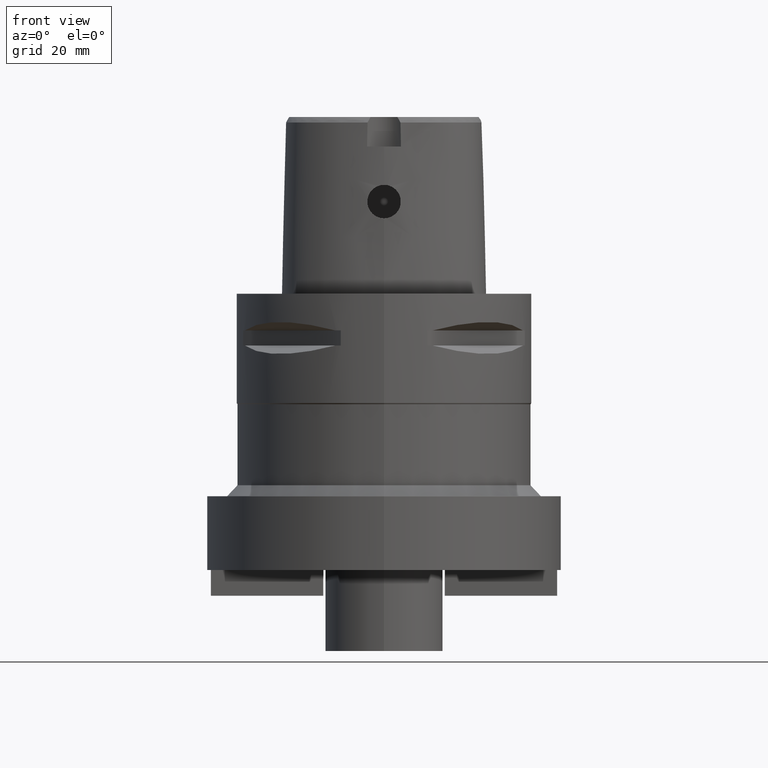
[diagram: clean part render]
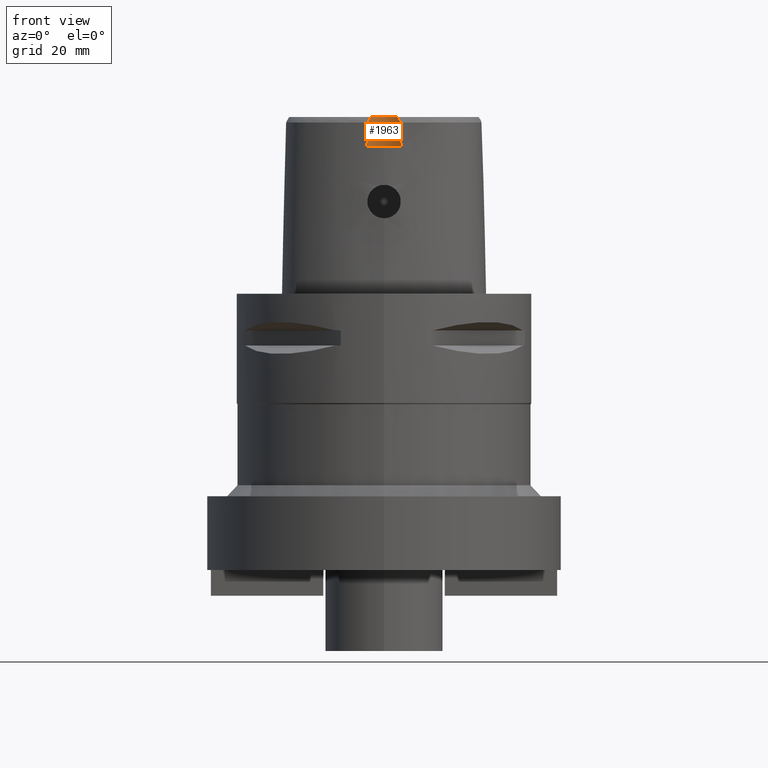
[diagram: same view with one face highlighted and labeled with its STEP entity id]
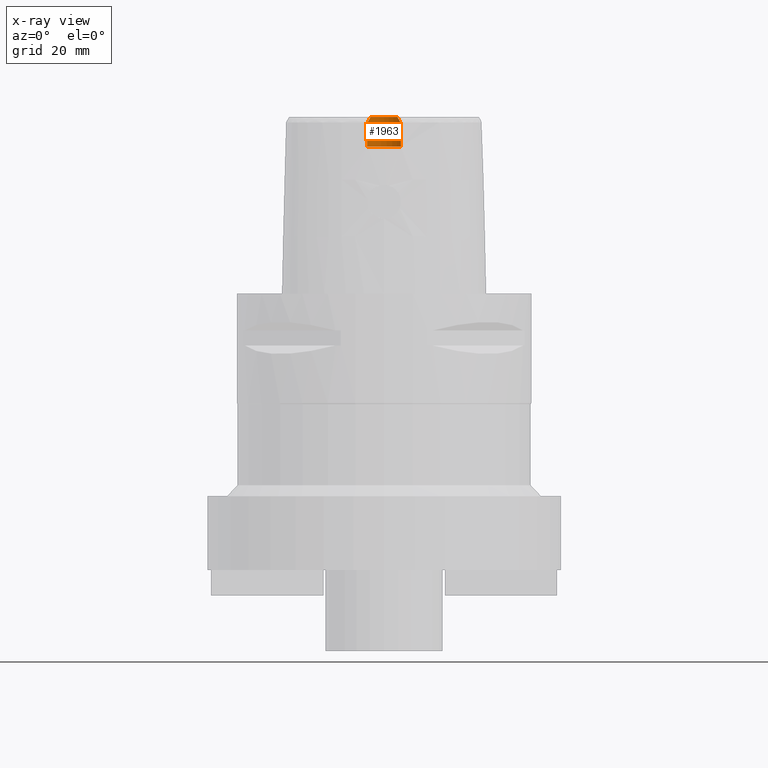
[diagram: x-ray of the same camera — body ghosted, the highlighted face saturated]
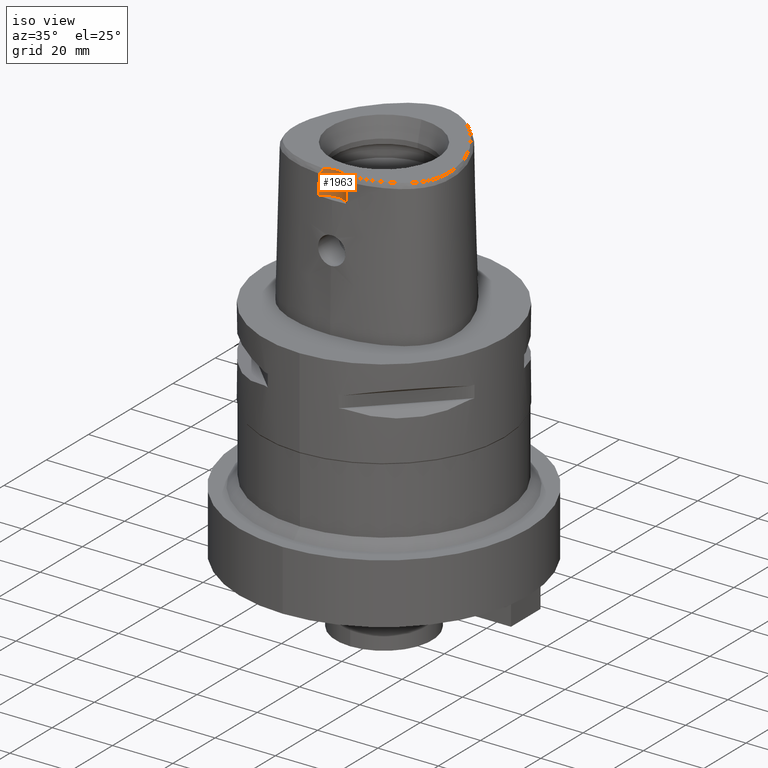
[diagram: same view with one face highlighted and labeled with its STEP entity id]
A machine part, front view. The second image highlights one B-rep face of the part: STEP entity #1963.
The next image is the same camera in x-ray: the body ghosted, the highlighted face saturated — about 0% of this face is hidden behind the body in this view.
A second angle (iso view) of the same face is appended — the face is thin or edge-on in the first view.
In plain terms, the highlighted cylindrical surface (edge-blend (fillet) strip) has radius 6 mm, axis along (0, 0, 1).
Its self-contained STEP definition (entity closure, byte-faithful):
#17=CARTESIAN_POINT('',(0.E0,-2.82E1,4.8E1));
#18=DIRECTION('',(0.E0,0.E0,1.E0));
#19=DIRECTION('',(6.087555377261E-1,7.933578607967E-1,0.E0));
#20=AXIS2_PLACEMENT_3D('',#17,#18,#19);
#130=CARTESIAN_POINT('',(4.472216720977E0,-2.420009030094E1,4.652069014669E1));
#131=CARTESIAN_POINT('',(4.386286441850E0,-2.410401342420E1,4.670602323245E1));
#132=CARTESIAN_POINT('',(4.210291161526E0,-2.391971665488E1,4.706275706762E1));
#133=CARTESIAN_POINT('',(3.936688198594E0,-2.366703750369E1,4.755478270537E1));
#134=CARTESIAN_POINT('',(3.748029904804E0,-2.351312888719E1,4.785616800222E1));
#135=CARTESIAN_POINT('',(3.652533226355E0,-2.343985283522E1,4.8E1));
#184=CARTESIAN_POINT('',(-3.652529789307E0,-2.343985019792E1,4.8E1));
#185=CARTESIAN_POINT('',(-3.751458700752E0,-2.351575974092E1,4.785100276185E1));
#186=CARTESIAN_POINT('',(-3.944058118118E0,-2.367336383386E1,4.754242973701E1));
#187=CARTESIAN_POINT('',(-4.216312386346E0,-2.392578284135E1,4.705100141970E1));
#188=CARTESIAN_POINT('',(-4.388655479502E0,-2.410666211794E1,4.670093133886E1));
#189=CARTESIAN_POINT('',(-4.472216406693E0,-2.420008985674E1,4.652070903171E1));
#245=CARTESIAN_POINT('',(-4.472216406693E0,-2.420008985674E1,4.652070903171E1));
#246=CARTESIAN_POINT('',(-4.487210721186E0,-2.421685468864E1,4.579601479726E1));
#247=CARTESIAN_POINT('',(-4.516393871198E0,-2.424985511122E1,4.434671166025E1));
#248=CARTESIAN_POINT('',(-4.559960929945E0,-2.430022581201E1,4.217314625867E1));
#249=CARTESIAN_POINT('',(-4.588866880071E0,-2.433440429495E1,4.072435065553E1));
#250=CARTESIAN_POINT('',(-4.602926399294E0,-2.435121850033E1,4.E1));
#1081=CARTESIAN_POINT('',(4.602926386879E0,-2.435121850030E1,4.000000005215E1));
#1082=CARTESIAN_POINT('',(4.588866899356E0,-2.433440433283E1,4.072434907413E1));
#1083=CARTESIAN_POINT('',(4.559961035626E0,-2.430022594202E1,4.217314077646E1));
#1084=CARTESIAN_POINT('',(4.516394065040E0,-2.424985529238E1,4.434670381198E1));
#1085=CARTESIAN_POINT('',(4.487210999458E0,-2.421685509515E1,4.579599754735E1));
#1086=CARTESIAN_POINT('',(4.472216720977E0,-2.420009030094E1,4.652069014669E1));
#1118=CARTESIAN_POINT('',(0.E0,-2.82E1,4.E1));
#1119=DIRECTION('',(0.E0,0.E0,-1.E0));
#1120=DIRECTION('',(-7.671609797427E-1,6.414546212791E-1,0.E0));
#1121=AXIS2_PLACEMENT_3D('',#1118,#1119,#1120);
#1718=CARTESIAN_POINT('',(3.652533226356E0,-2.343985283522E1,4.8E1));
#1719=CARTESIAN_POINT('',(-3.652529789305E0,-2.343985019792E1,4.8E1));
#1720=VERTEX_POINT('',#1718);
#1721=VERTEX_POINT('',#1719);
#1727=VERTEX_POINT('',#130);
#1728=VERTEX_POINT('',#1081);
#1729=CARTESIAN_POINT('',(-4.602965878456E0,-2.435127227233E1,4.E1));
#1730=VERTEX_POINT('',#1729);
#1731=VERTEX_POINT('',#245);
#1945=CARTESIAN_POINT('',(0.E0,-2.82E1,4.8E1));
#1946=DIRECTION('',(0.E0,0.E0,1.E0));
#1947=DIRECTION('',(1.E0,0.E0,0.E0));
#1948=AXIS2_PLACEMENT_3D('',#1945,#1946,#1947);
#1949=CYLINDRICAL_SURFACE('',#1948,6.E0);
#1950=ORIENTED_EDGE('',*,*,#1930,.F.);
#1952=ORIENTED_EDGE('',*,*,#1951,.F.);
#1954=ORIENTED_EDGE('',*,*,#1953,.F.);
#1956=ORIENTED_EDGE('',*,*,#1955,.F.);
#1958=ORIENTED_EDGE('',*,*,#1957,.F.);
#1960=ORIENTED_EDGE('',*,*,#1959,.F.);
#1961=EDGE_LOOP('',(#1950,#1952,#1954,#1956,#1958,#1960));
#1962=FACE_OUTER_BOUND('',#1961,.F.);
#21=CIRCLE('',#20,6.E0);
#136=B_SPLINE_CURVE_WITH_KNOTS('',3,(#130,#131,#132,#133,#134,#135),
.UNSPECIFIED.,.F.,.F.,(4,1,1,4),(0.E0,3.333333333333E-1,6.666666666667E-1,1.E0),
.UNSPECIFIED.);
#190=B_SPLINE_CURVE_WITH_KNOTS('',3,(#184,#185,#186,#187,#188,#189),
.UNSPECIFIED.,.F.,.F.,(4,1,1,4),(0.E0,3.333333333333E-1,6.666666666667E-1,1.E0),
.UNSPECIFIED.);
#251=B_SPLINE_CURVE_WITH_KNOTS('',3,(#245,#246,#247,#248,#249,#250),
.UNSPECIFIED.,.F.,.F.,(4,1,1,4),(0.E0,3.333333333333E-1,6.666666666667E-1,1.E0),
.UNSPECIFIED.);
#1087=B_SPLINE_CURVE_WITH_KNOTS('',3,(#1081,#1082,#1083,#1084,#1085,#1086),
.UNSPECIFIED.,.F.,.F.,(4,1,1,4),(0.E0,3.333333333333E-1,6.666666666667E-1,1.E0),
.UNSPECIFIED.);
#1122=CIRCLE('',#1121,6.E0);
#1930=EDGE_CURVE('',#1720,#1721,#21,.T.);
#1951=EDGE_CURVE('',#1727,#1720,#136,.T.);
#1953=EDGE_CURVE('',#1728,#1727,#1087,.T.);
#1955=EDGE_CURVE('',#1730,#1728,#1122,.T.);
#1957=EDGE_CURVE('',#1731,#1730,#251,.T.);
#1959=EDGE_CURVE('',#1721,#1731,#190,.T.);
#1963=ADVANCED_FACE('',(#1962),#1949,.F.);